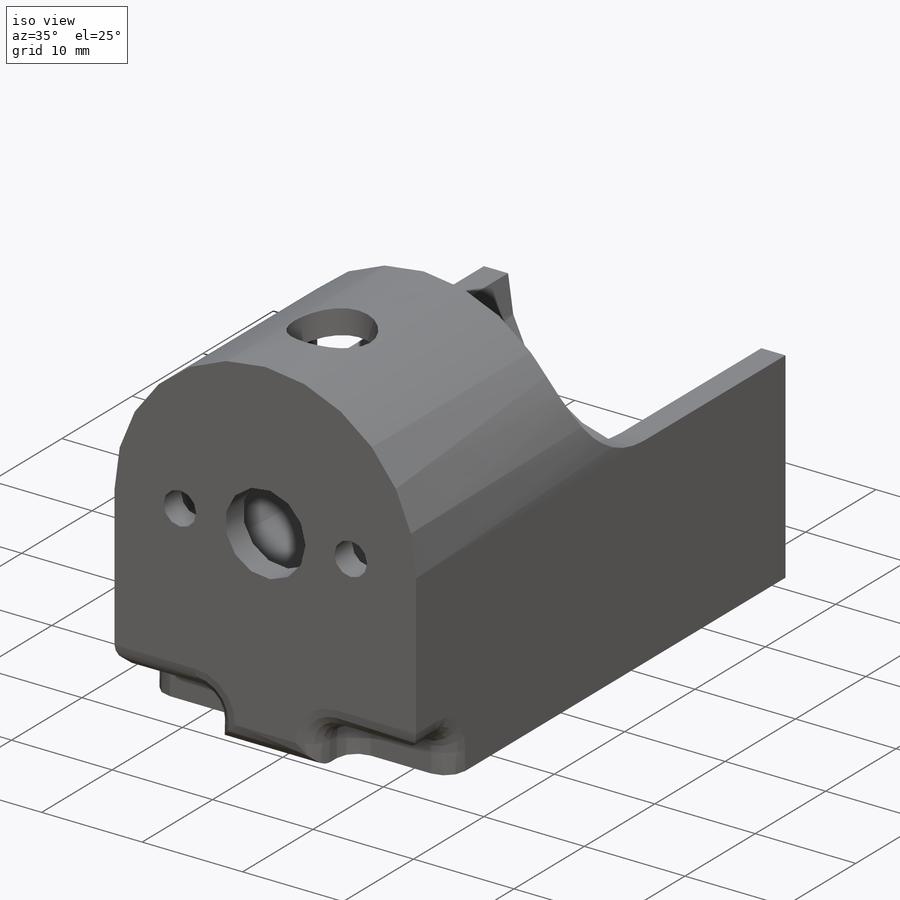
[diagram: iso view]
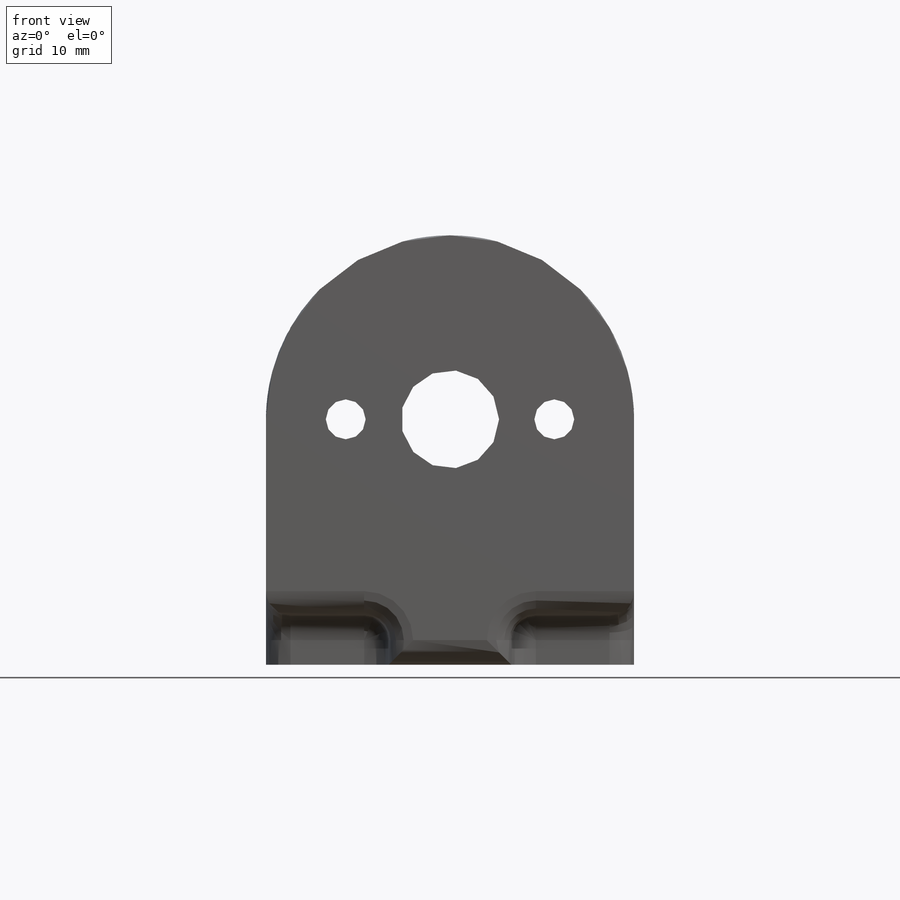
[diagram: front view]
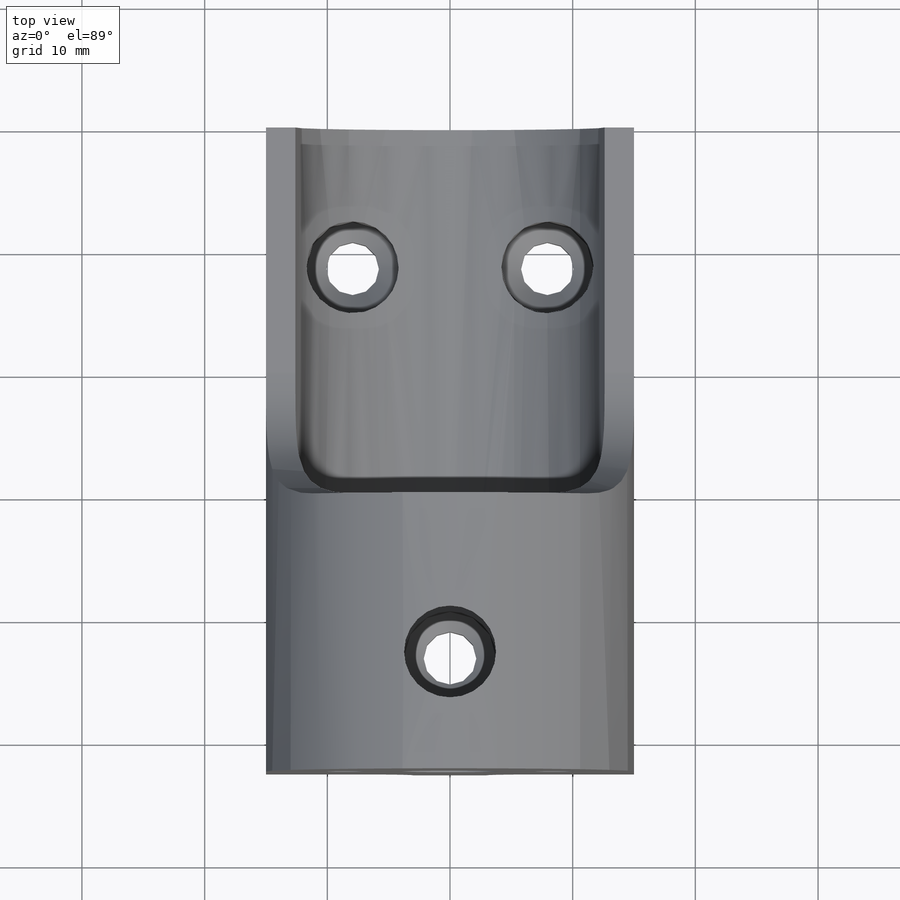
[diagram: top view]
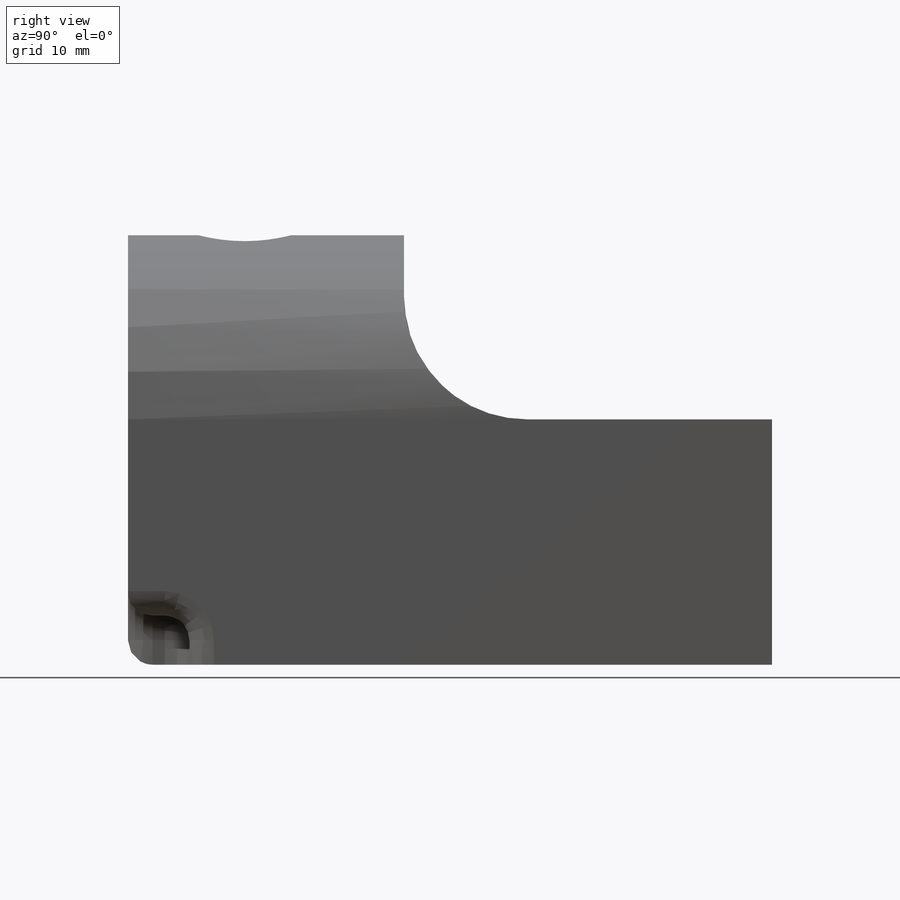
[diagram: right view]
SOLIDWORKS PART (.sldprt)
format: sldprt  version: not decoded by parser v0  size: 404,992 bytes
history: native  units: mm
features: sketch x9, cut_extrude x4, extrude x3, fillet x2, material x1, hole x1 (+13 scaffold rows collapsed)
feature tree (33):
  scaffold x13  (default folders/planes/origin — collapsed)
  material  "Material <not specified>"
  sketch  "Sketch1"  dims[D1=25.75mm D2=15.0mm D3=20.0mm]
  extrude  "Boss-Extrude1"  Depth=20mm
  sketch  "Sketch2"
  extrude  "Boss-Extrude2"  Depth=2.5mm
  sketch  "Sketch3"  dims[D1=8.0mm D2=3.25mm D3=17.0mm]
  cut_extrude  "Cut-Extrude1"  Depth=2.5mm
  sketch  "Sketch4"
  extrude  "Boss-Extrude3"  Depth=30mm
  fillet  "Fillet1"  Radius=10mm
  sketch  "Sketch8"  dims[c1.D1=7.5mm c1.D2=9.525mm c1.D3=31.75mm c1.D4=15.875mm c2.D1=8.1mm c2.D5=8.1mm c2.D6=8.1mm]
  cut_extrude  "Cut-Extrude2"  Depth=15.6mm
  sketch  "Sketch11"  dims[c1.D1=5.0mm c1.D2=4.0mm c2.D1=4.0mm c2.D3=10.0mm]
  cut_extrude  "Cut-Extrude3"  Depth=5mm
  fillet  "Fillet2"  Radius=2mm
  hole  "CSK for M3 Flat Head Machine Screw1"  Diameter=3.6mm Depth=10mm
  sketch  "Sketch13"
  sketch  "Sketch12"  dims[hole-wizard template sketch: 39 standard entries collapsed; hole parameters kept: c13.Hole Dia.=3.6mm c13.Hole Depth=10.0mm c13.Near C'Sink Dia.=6.3mm c13.D4=~33.297463mm c13.Near C'Sink Angle=90.0deg c14.D5=~14.816244mm c14.Drill Angle=118.0deg]
  sketch  "Sketch14"  dims[D1=3.81mm]
  cut_extrude  "Cut-Extrude4"  [1 undecoded]
decode coverage: 15 of 19 modeling features carry decoded parameters
note: ~ marks probable driven/reference dimensions
note: 1 parameter value undecoded
note: suppression state not decoded; provenance and decode notes live in map.json
